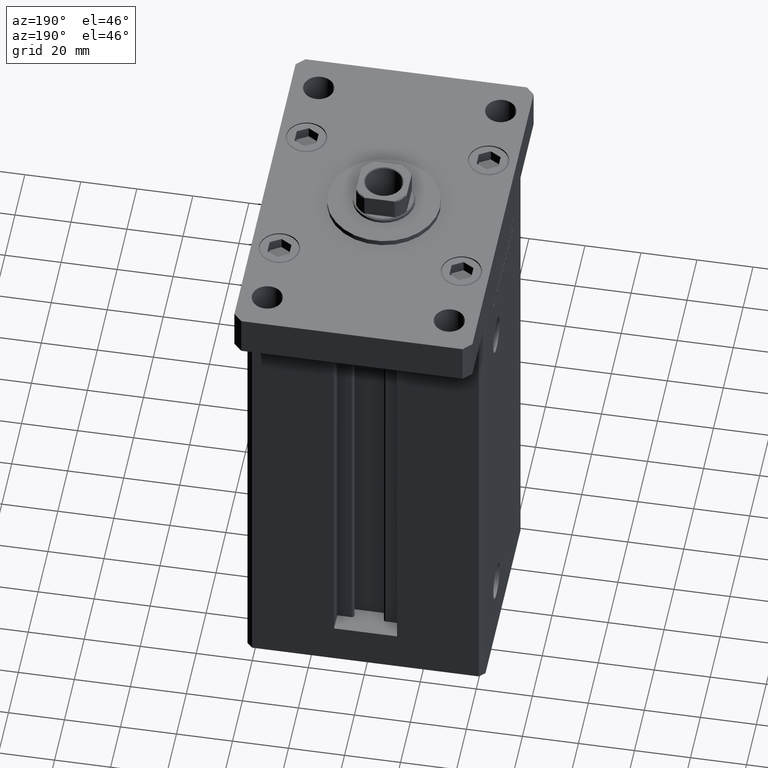
[diagram: clean part render]
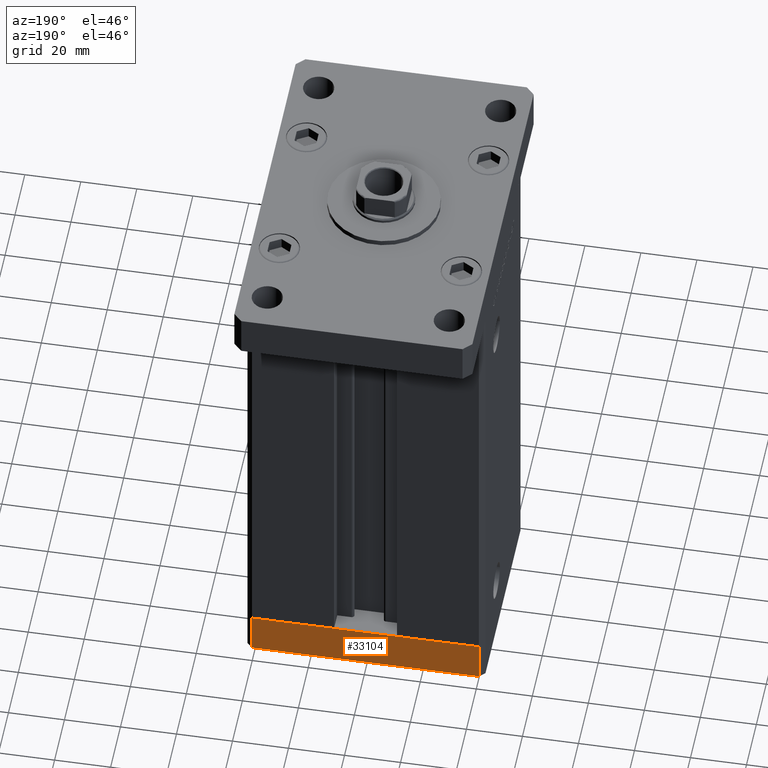
[diagram: same view with one face highlighted and labeled with its STEP entity id]
A machine part, auxiliary view. The second image highlights one B-rep face of the part: STEP entity #33104.
In plain terms, the highlighted planar face has unit normal (0, 1, 0).
Its self-contained STEP definition (entity closure, byte-faithful):
#259 = ORIENTED_EDGE ( 'NONE', *, *, #50876, .T. ) ;
#1839 = CARTESIAN_POINT ( 'NONE',  ( -40.50000000000000711, 37.49999999999997868, -15.00000000000000000 ) ) ;
#7156 = CARTESIAN_POINT ( 'NONE',  ( -40.50000000000000711, 37.49999999999997868, -15.00000000000000000 ) ) ;
#7354 = VERTEX_POINT ( 'NONE', #24009 ) ;
#8294 = LINE ( 'NONE', #38356, #14204 ) ;
#8622 = LINE ( 'NONE', #33823, #35362 ) ;
#8798 = EDGE_LOOP ( 'NONE', ( #36212, #15275, #259, #21460 ) ) ;
#9027 = PLANE ( 'NONE',  #32816 ) ;
#14204 = VECTOR ( 'NONE', #45683, 1000.000000000000000 ) ;
#15275 = ORIENTED_EDGE ( 'NONE', *, *, #32565, .F. ) ;
#17418 = DIRECTION ( 'NONE',  ( -3.426614273534436165E-16, 1.000000000000000000, 0.000000000000000000 ) ) ;
#21155 = VERTEX_POINT ( 'NONE', #1839 ) ;
#21460 = ORIENTED_EDGE ( 'NONE', *, *, #52936, .T. ) ;
#22762 = VECTOR ( 'NONE', #24484, 1000.000000000000000 ) ;
#23912 = CARTESIAN_POINT ( 'NONE',  ( 40.49999999999991473, 37.50000000000000711, 0.000000000000000000 ) ) ;
#24009 = CARTESIAN_POINT ( 'NONE',  ( 40.49999999999991473, 37.50000000000000711, 0.000000000000000000 ) ) ;
#24209 = VECTOR ( 'NONE', #32319, 1000.000000000000000 ) ;
#24484 = DIRECTION ( 'NONE',  ( 0.000000000000000000, 0.000000000000000000, 1.000000000000000000 ) ) ;
#32319 = DIRECTION ( 'NONE',  ( -1.000000000000000000, -3.426614273534436165E-16, 0.000000000000000000 ) ) ;
#32326 = VERTEX_POINT ( 'NONE', #35736 ) ;
#32565 = EDGE_CURVE ( 'NONE', #35305, #7354, #8622, .T. ) ;
#32816 = AXIS2_PLACEMENT_3D ( 'NONE', #38022, #17418, #33956 ) ;
#33104 = ADVANCED_FACE ( 'NONE', ( #46153 ), #9027, .T. ) ;
#33554 = DIRECTION ( 'NONE',  ( 0.000000000000000000, 0.000000000000000000, 1.000000000000000000 ) ) ;
#33823 = CARTESIAN_POINT ( 'NONE',  ( 40.49999999999991473, 37.50000000000000711, -15.00000000000000000 ) ) ;
#33956 = DIRECTION ( 'NONE',  ( -1.000000000000000000, -3.426614273534436165E-16, 0.000000000000000000 ) ) ;
#35305 = VERTEX_POINT ( 'NONE', #49746 ) ;
#35362 = VECTOR ( 'NONE', #33554, 1000.000000000000000 ) ;
#35736 = CARTESIAN_POINT ( 'NONE',  ( -40.50000000000000711, 37.49999999999997868, 0.000000000000000000 ) ) ;
#36212 = ORIENTED_EDGE ( 'NONE', *, *, #39117, .F. ) ;
#36430 = LINE ( 'NONE', #7156, #22762 ) ;
#38022 = CARTESIAN_POINT ( 'NONE',  ( 40.49999999999991473, 37.50000000000000711, -15.00000000000000000 ) ) ;
#38356 = CARTESIAN_POINT ( 'NONE',  ( 40.49999999999991473, 37.50000000000000711, -15.00000000000000000 ) ) ;
#39117 = EDGE_CURVE ( 'NONE', #7354, #32326, #45592, .T. ) ;
#45592 = LINE ( 'NONE', #23912, #24209 ) ;
#45683 = DIRECTION ( 'NONE',  ( -1.000000000000000000, -3.426614273534436165E-16, 0.000000000000000000 ) ) ;
#46153 = FACE_OUTER_BOUND ( 'NONE', #8798, .T. ) ;
#49746 = CARTESIAN_POINT ( 'NONE',  ( 40.49999999999991473, 37.50000000000000711, -15.00000000000000000 ) ) ;
#50876 = EDGE_CURVE ( 'NONE', #35305, #21155, #8294, .T. ) ;
#52936 = EDGE_CURVE ( 'NONE', #21155, #32326, #36430, .T. ) ;